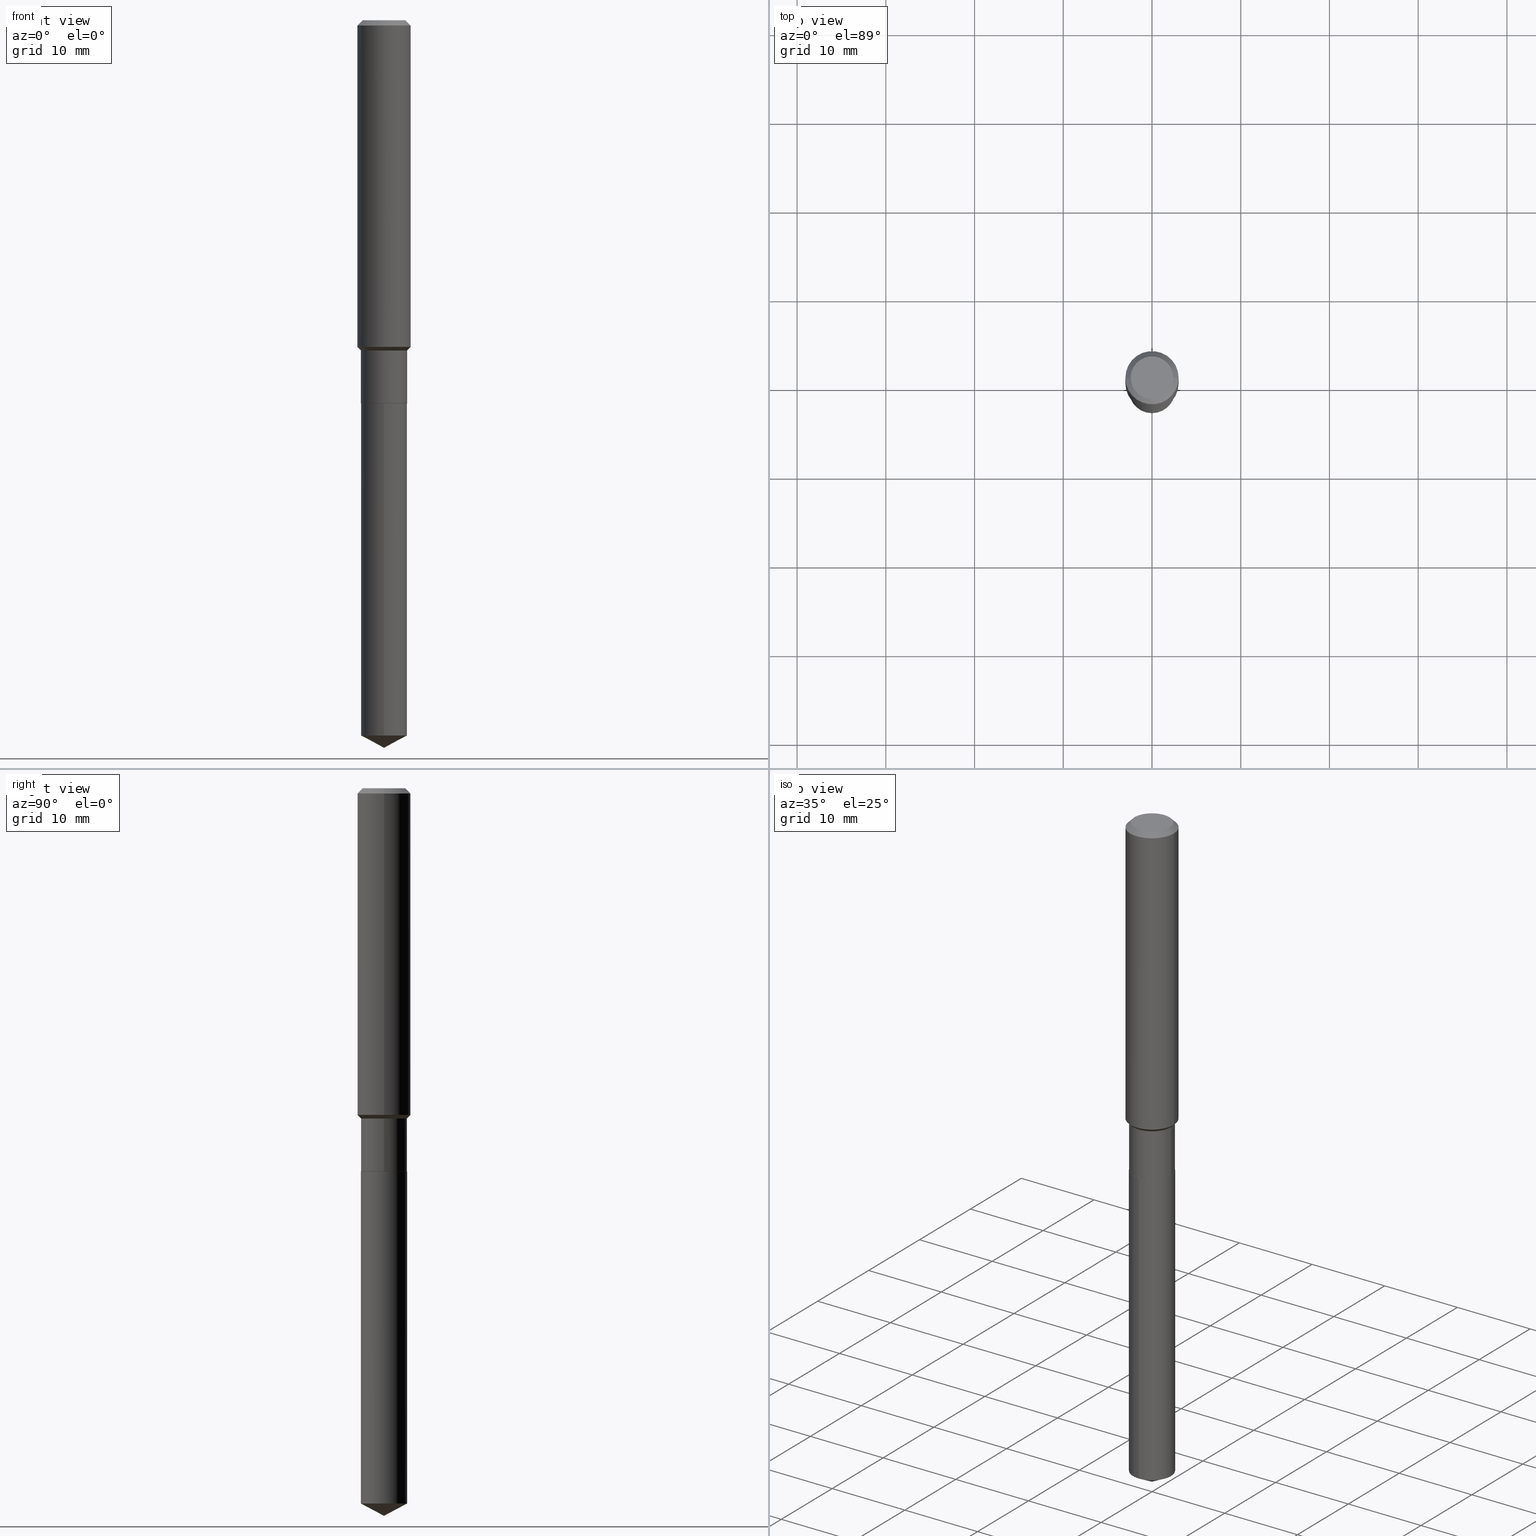
[diagram: canonical four-view strip — front | top / right | iso, engineering-drawing reading convention]
A machine part, canonical four-view strip (front | top / right | iso — engineering-drawing reading convention). The complete STEP part file that produces these views, byte-faithful:
ISO-10303-21;
HEADER;
FILE_DESCRIPTION (( 'STEP AP203' ),
    '1' );
FILE_NAME ('65022.STEP',
    '2024-04-24T19:53:44',
    ( '' ),
    ( '' ),
    'SwSTEP 2.0',
    'SolidWorks 2023',
    '' );
FILE_SCHEMA (( 'CONFIG_CONTROL_DESIGN' ));
ENDSEC;

DATA;
#1 = DIRECTION ( 'NONE',  ( 6.273719981627756610E-15, 0.8829475928589286537, 0.4694715627858877527 ) ) ;
#2 = VERTEX_POINT ( 'NONE', #459 ) ;
#3 = PLANE ( 'NONE',  #233 ) ;
#4 = AXIS2_PLACEMENT_3D ( 'NONE', #121, #415, #123 ) ;
#5 = CARTESIAN_POINT ( 'NONE',  ( 3.544829308005664880E-29, -5.061076774720080972E-15, -1.449549999999999894 ) ) ;
#6 = DIRECTION ( 'NONE',  ( -2.445468806185136877E-29, 3.491481338843145188E-15, 1.000000000000000000 ) ) ;
#7 = EDGE_CURVE ( 'NONE', #237, #210, #212, .T. ) ;
#8 = DIRECTION ( 'NONE',  ( -2.445509294301863442E-29, 3.491423357555552008E-15, 1.000000000000000000 ) ) ;
#9 = AXIS2_PLACEMENT_3D ( 'NONE', #35, #191, #122 ) ;
#10 = EDGE_CURVE ( 'NONE', #382, #62, #107, .T. ) ;
#11 = MECHANICAL_CONTEXT ( 'NONE', #458, 'mechanical' ) ;
#12 = EDGE_CURVE ( 'NONE', #112, #2, #180, .T. ) ;
#13 = APPROVAL_STATUS ( 'not_yet_approved' ) ;
#14 = ORIENTED_EDGE ( 'NONE', *, *, #296, .F. ) ;
#15 = DIRECTION ( 'NONE',  ( 1.000000000000000000, -6.982962677686266711E-15, 4.876176775795936353E-29 ) ) ;
#16 = DIRECTION ( 'NONE',  ( 1.000000000000000000, -6.982962677686262766E-15, 0.000000000000000000 ) ) ;
#17 = EDGE_LOOP ( 'NONE', ( #94, #456, #304, #286 ) ) ;
#18 = AXIS2_PLACEMENT_3D ( 'NONE', #381, #186, #153 ) ;
#19 = SECURITY_CLASSIFICATION_LEVEL ( 'unclassified' ) ;
#20 = VERTEX_POINT ( 'NONE', #314 ) ;
#21 = DIRECTION ( 'NONE',  ( -1.000000000000000000, 6.982962677686266711E-15, 0.000000000000000000 ) ) ;
#22 = APPROVAL_STATUS ( 'not_yet_approved' ) ;
#23 = DIRECTION ( 'NONE',  ( -2.445468806185136597E-29, 3.491481338843145583E-15, 1.000000000000000000 ) ) ;
#24 = CARTESIAN_POINT ( 'NONE',  ( 5.776197320209327532E-31, -8.246878922347559293E-17, -0.02362000000000014088 ) ) ;
#25 = AXIS2_PLACEMENT_3D ( 'NONE', #160, #285, #323 ) ;
#26 = VECTOR ( 'NONE', #137, 39.37007874015748143 ) ;
#27 = ORIENTED_EDGE ( 'NONE', *, *, #296, .T. ) ;
#28 = CC_DESIGN_DATE_AND_TIME_ASSIGNMENT ( #306, #114, ( #68 ) ) ;
#29 = ORIENTED_EDGE ( 'NONE', *, *, #44, .T. ) ;
#30 = DIRECTION ( 'NONE',  ( 1.000000000000000000, -6.982962677686266711E-15, 4.876176775795936353E-29 ) ) ;
#31 = DIRECTION ( 'NONE',  ( -2.445468806185136597E-29, 3.491481338843145583E-15, 1.000000000000000000 ) ) ;
#32 = VECTOR ( 'NONE', #6, 39.37007874015748143 ) ;
#33 = CIRCLE ( 'NONE', #448, 0.1181000000000001632 ) ;
#34 = FACE_OUTER_BOUND ( 'NONE', #84, .T. ) ;
#35 = CARTESIAN_POINT ( 'NONE',  ( 4.157786064275969447E-29, -5.936216572301116605E-15, -1.700200000000000156 ) ) ;
#36 = EDGE_CURVE ( 'NONE', #62, #382, #347, .T. ) ;
#37 = CARTESIAN_POINT ( 'NONE',  ( 4.159008798679061688E-29, -5.937962312970537319E-15, -1.700699999999999878 ) ) ;
#38 = DIRECTION ( 'NONE',  ( -0.7071067811865459074, 2.468850131082240100E-15, -0.7071067811865491270 ) ) ;
#39 = ORIENTED_EDGE ( 'NONE', *, *, #402, .F. ) ;
#40 = FACE_OUTER_BOUND ( 'NONE', #104, .T. ) ;
#41 = EDGE_LOOP ( 'NONE', ( #432, #351, #135, #131 ) ) ;
#42 = CIRCLE ( 'NONE', #371, 0.1181000000000001632 ) ;
#43 = FACE_OUTER_BOUND ( 'NONE', #422, .T. ) ;
#44 = EDGE_CURVE ( 'NONE', #438, #118, #59, .T. ) ;
#45 = DIRECTION ( 'NONE',  ( -2.445468806185136597E-29, 3.491481338843145583E-15, 1.000000000000000000 ) ) ;
#46 = DIRECTION ( 'NONE',  ( -2.445468806185136597E-29, 3.491481338843145583E-15, 1.000000000000000000 ) ) ;
#47 = DIRECTION ( 'NONE',  ( -6.982962677686265922E-15, -1.000000000000000000, 2.669123589315352370E-15 ) ) ;
#48 = DIRECTION ( 'NONE',  ( -2.445509294301863442E-29, 3.491423357555552008E-15, 1.000000000000000000 ) ) ;
#49 = ADVANCED_FACE ( 'NONE', ( #341 ), #477, .T. ) ;
#50 = VECTOR ( 'NONE', #70, 39.37007874015748143 ) ;
#51 = CONICAL_SURFACE ( 'NONE', #417, 74.04434902938312746, 1.082104136236484271 ) ;
#52 = ORIENTED_EDGE ( 'NONE', *, *, #224, .T. ) ;
#53 = VECTOR ( 'NONE', #380, 39.37007874015748143 ) ;
#54 = ADVANCED_FACE ( 'NONE', ( #436 ), #105, .T. ) ;
#55 = DIRECTION ( 'NONE',  ( -2.445468806185136597E-29, 3.491481338843145583E-15, 1.000000000000000000 ) ) ;
#56 = DIRECTION ( 'NONE',  ( -2.445468806185136597E-29, 3.491481338843145583E-15, 1.000000000000000000 ) ) ;
#57 = ORIENTED_EDGE ( 'NONE', *, *, #111, .T. ) ;
#58 = PERSON_AND_ORGANIZATION ( #376, #302 ) ;
#59 = CIRCLE ( 'NONE', #400, 0.1023499999999999688 ) ;
#60 = PRODUCT_DEFINITION_FORMATION_WITH_SPECIFIED_SOURCE ( 'ANY', '', #358, .NOT_KNOWN. ) ;
#61 = VERTEX_POINT ( 'NONE', #379 ) ;
#62 = VERTEX_POINT ( 'NONE', #322 ) ;
#63 = PERSON_AND_ORGANIZATION_ROLE ( 'design_supplier' ) ;
#64 = ORIENTED_EDGE ( 'NONE', *, *, #390, .F. ) ;
#65 = PERSON_AND_ORGANIZATION ( #376, #302 ) ;
#66 = AXIS2_PLACEMENT_3D ( 'NONE', #450, #165, #273 ) ;
#67 = ADVANCED_FACE ( 'NONE', ( #127 ), #188, .T. ) ;
#68 = SECURITY_CLASSIFICATION ( '', '', #19 ) ;
#69 = APPROVAL_DATE_TIME ( #303, #194 ) ;
#70 = DIRECTION ( 'NONE',  ( -0.7071067811866199593, 7.493145998870616062E-15, 0.7071067811864750752 ) ) ;
#71 = DIRECTION ( 'NONE',  ( -6.982962677686267499E-15, -1.000000000000000000, 3.541896320645580590E-15 ) ) ;
#72 = DIRECTION ( 'NONE',  ( -2.445509294301863442E-29, 3.491423357555552008E-15, 1.000000000000000000 ) ) ;
#73 = EDGE_CURVE ( 'NONE', #161, #62, #453, .T. ) ;
#74 = CARTESIAN_POINT ( 'NONE',  ( 4.716267017698007905E-46, -6.733579360998555036E-32, -1.928573779297252010E-17 ) ) ;
#75 = LINE ( 'NONE', #317, #469 ) ;
#76 = ORIENTED_EDGE ( 'NONE', *, *, #12, .F. ) ;
#77 = CARTESIAN_POINT ( 'NONE',  ( 5.776197320209327532E-31, -8.246878922347559293E-17, -0.02362000000000014088 ) ) ;
#78 = AXIS2_PLACEMENT_3D ( 'NONE', #311, #23, #245 ) ;
#79 = LOCAL_TIME ( 15, 53, 44.00000000000000000, #265 ) ;
#80 = DIRECTION ( 'NONE',  ( 2.445509294301863162E-29, -3.491423357555552008E-15, -1.000000000000000000 ) ) ;
#81 = DIRECTION ( 'NONE',  ( -6.982962677686265922E-15, -1.000000000000000000, 5.338247178630704739E-15 ) ) ;
#82 = CARTESIAN_POINT ( 'NONE',  ( -0.1023499999999999688, -4.388827115756398975E-15, -1.465300000000000047 ) ) ;
#83 = DIRECTION ( 'NONE',  ( -2.445509294301863442E-29, 3.491423357555552008E-15, 1.000000000000000000 ) ) ;
#84 = EDGE_LOOP ( 'NONE', ( #64, #373, #162 ) ) ;
#85 = DIRECTION ( 'NONE',  ( -6.165590087286825774E-15, -0.8829475928589252121, 0.4694715627858939699 ) ) ;
#86 = LINE ( 'NONE', #488, #154 ) ;
#87 = CARTESIAN_POINT ( 'NONE',  ( 4.159008798679061688E-29, -5.937962312970537319E-15, -1.700699999999999878 ) ) ;
#88 = DIRECTION ( 'NONE',  ( 1.000000000000000000, -6.982962677686266711E-15, 0.000000000000000000 ) ) ;
#89 = EDGE_CURVE ( 'NONE', #216, #61, #440, .T. ) ;
#90 = AXIS2_PLACEMENT_3D ( 'NONE', #87, #388, #47 ) ;
#91 = DIRECTION ( 'NONE',  ( -6.982962677686265922E-15, -1.000000000000000000, 2.669123589315352370E-15 ) ) ;
#92 = DIRECTION ( 'NONE',  ( 1.000000000000000000, -6.982962677686266711E-15, 4.876176775795936353E-29 ) ) ;
#93 = ADVANCED_FACE ( 'NONE', ( #239 ), #327, .T. ) ;
#94 = ORIENTED_EDGE ( 'NONE', *, *, #402, .T. ) ;
#95 = ADVANCED_BREP_SHAPE_REPRESENTATION ( '65022', ( #150, #152, #372 ), #130 ) ;
#96 = DIRECTION ( 'NONE',  ( 1.000000000000000000, -6.982962677686265922E-15, 4.876176775795935793E-29 ) ) ;
#97 = EDGE_LOOP ( 'NONE', ( #144, #393, #439, #295 ) ) ;
#98 = DIRECTION ( 'NONE',  ( -2.438088387897960049E-29, 3.491481338843145188E-15, 1.000000000000000000 ) ) ;
#99 = AXIS2_PLACEMENT_3D ( 'NONE', #77, #423, #88 ) ;
#100 = AXIS2_PLACEMENT_3D ( 'NONE', #201, #434, #139 ) ;
#101 = DIRECTION ( 'NONE',  ( 1.000000000000000000, -6.982962677686263555E-15, 0.000000000000000000 ) ) ;
#102 = ORIENTED_EDGE ( 'NONE', *, *, #490, .F. ) ;
#103 =( NAMED_UNIT ( * ) PLANE_ANGLE_UNIT ( ) SI_UNIT ( $, .RADIAN. ) );
#104 = EDGE_LOOP ( 'NONE', ( #299, #479, #227, #260 ) ) ;
#105 = CYLINDRICAL_SURFACE ( 'NONE', #353, 0.1023499999999999827 ) ;
#106 = APPROVAL_ROLE ( '' ) ;
#107 = CIRCLE ( 'NONE', #385, 0.1180999999999999966 ) ;
#108 = VECTOR ( 'NONE', #174, 39.37007874015748143 ) ;
#109 = SHAPE_DEFINITION_REPRESENTATION ( #466, #95 ) ;
#110 = CARTESIAN_POINT ( 'NONE',  ( -7.147062300611476852E-16, -0.1023500000000059501, -1.700699999999999656 ) ) ;
#111 = EDGE_CURVE ( 'NONE', #112, #168, #308, .T. ) ;
#112 = VERTEX_POINT ( 'NONE', #166 ) ;
#113 = EDGE_CURVE ( 'NONE', #438, #462, #86, .T. ) ;
#114 = DATE_TIME_ROLE ( 'classification_date' ) ;
#115 = VERTEX_POINT ( 'NONE', #196 ) ;
#116 = CONICAL_SURFACE ( 'NONE', #279, 0.1018499999999999961, 0.7853981633975507526 ) ;
#117 = APPROVAL_DATE_TIME ( #149, #276 ) ;
#118 = VERTEX_POINT ( 'NONE', #274 ) ;
#119 = CYLINDRICAL_SURFACE ( 'NONE', #333, 0.1023499999999999965 ) ;
#120 = ORIENTED_EDGE ( 'NONE', *, *, #171, .T. ) ;
#121 = CARTESIAN_POINT ( 'NONE',  ( 4.157786064275969447E-29, -5.936216572301116605E-15, -1.700200000000000156 ) ) ;
#122 = DIRECTION ( 'NONE',  ( 1.000000000000000000, -6.982962677686270655E-15, 0.000000000000000000 ) ) ;
#123 = DIRECTION ( 'NONE',  ( 1.000000000000000000, -6.982962677686270655E-15, 0.000000000000000000 ) ) ;
#124 = CARTESIAN_POINT ( 'NONE',  ( 7.761683055116036547E-29, -1.108145576764538429E-14, -3.173879539669447691 ) ) ;
#125 = DIRECTION ( 'NONE',  ( -2.445468806185136597E-29, 3.491481338843145583E-15, 1.000000000000000000 ) ) ;
#126 = CARTESIAN_POINT ( 'NONE',  ( 0.000000000000000000, 0.000000000000000000, 0.000000000000000000 ) ) ;
#127 = FACE_OUTER_BOUND ( 'NONE', #200, .T. ) ;
#128 = EDGE_CURVE ( 'NONE', #2, #115, #75, .T. ) ;
#129 = DIRECTION ( 'NONE',  ( -2.445468806185136597E-29, 3.491481338843145583E-15, 1.000000000000000000 ) ) ;
#130 =( GEOMETRIC_REPRESENTATION_CONTEXT ( 3 ) GLOBAL_UNCERTAINTY_ASSIGNED_CONTEXT ( ( #478 ) ) GLOBAL_UNIT_ASSIGNED_CONTEXT ( ( #170, #103, #292 ) ) REPRESENTATION_CONTEXT ( 'NONE', 'WORKASPACE' ) );
#131 = ORIENTED_EDGE ( 'NONE', *, *, #159, .F. ) ;
#132 = CARTESIAN_POINT ( 'NONE',  ( -0.09447999999999998066, 7.009847083995354710E-16, -1.928573779297727792E-17 ) ) ;
#133 = ADVANCED_FACE ( 'NONE', ( #357 ), #461, .T. ) ;
#134 = CARTESIAN_POINT ( 'NONE',  ( 3.583345441703080840E-29, -5.116067605806861096E-15, -1.465300000000000047 ) ) ;
#135 = ORIENTED_EDGE ( 'NONE', *, *, #10, .F. ) ;
#136 = DIRECTION ( 'NONE',  ( -6.982962677686265922E-15, -1.000000000000000000, 5.338247178630704739E-15 ) ) ;
#137 = DIRECTION ( 'NONE',  ( -2.445509294301863442E-29, 3.491423357555552008E-15, 1.000000000000000000 ) ) ;
#138 = APPROVAL_PERSON_ORGANIZATION ( #305, #435, #106 ) ;
#139 = DIRECTION ( 'NONE',  ( -6.982962677686265922E-15, -1.000000000000000000, 2.669123589315352370E-15 ) ) ;
#140 = ORIENTED_EDGE ( 'NONE', *, *, #128, .F. ) ;
#141 = CC_DESIGN_PERSON_AND_ORGANIZATION_ASSIGNMENT ( #179, #63, ( #60 ) ) ;
#142 = DIRECTION ( 'NONE',  ( -2.445468806185136597E-29, 3.491481338843145583E-15, 1.000000000000000000 ) ) ;
#143 = CALENDAR_DATE ( 2024, 24, 4 ) ;
#144 = ORIENTED_EDGE ( 'NONE', *, *, #474, .T. ) ;
#145 = AXIS2_PLACEMENT_3D ( 'NONE', #37, #80, #460 ) ;
#146 = EDGE_CURVE ( 'NONE', #2, #112, #425, .T. ) ;
#147 = CALENDAR_DATE ( 2024, 24, 4 ) ;
#148 = ORIENTED_EDGE ( 'NONE', *, *, #310, .T. ) ;
#149 = DATE_AND_TIME ( #403, #386 ) ;
#150 = MANIFOLD_SOLID_BREP ( 'Body-Move/Copy2[1]', #215 ) ;
#151 = ORIENTED_EDGE ( 'NONE', *, *, #442, .T. ) ;
#152 = MANIFOLD_SOLID_BREP ( 'Body-Move/Copy2[2]', #394 ) ;
#153 = DIRECTION ( 'NONE',  ( 1.000000000000000000, -6.982962677686262766E-15, 0.000000000000000000 ) ) ;
#154 = VECTOR ( 'NONE', #349, 39.37007874015748143 ) ;
#155 = CC_DESIGN_APPROVAL ( #194, ( #217 ) ) ;
#156 = PLANE ( 'NONE',  #25 ) ;
#157 = EDGE_LOOP ( 'NONE', ( #269, #76 ) ) ;
#158 = FACE_OUTER_BOUND ( 'NONE', #319, .T. ) ;
#159 = EDGE_CURVE ( 'NONE', #462, #382, #413, .T. ) ;
#160 = CARTESIAN_POINT ( 'NONE',  ( 2.358133508849003952E-46, -3.366789680499277518E-32, -9.642868896486260050E-18 ) ) ;
#161 = VERTEX_POINT ( 'NONE', #324 ) ;
#162 = ORIENTED_EDGE ( 'NONE', *, *, #474, .F. ) ;
#163 = AXIS2_PLACEMENT_3D ( 'NONE', #486, #246, #383 ) ;
#164 = CC_DESIGN_PERSON_AND_ORGANIZATION_ASSIGNMENT ( #473, #225, ( #68 ) ) ;
#165 = DIRECTION ( 'NONE',  ( 2.445468806185136597E-29, -3.491481338843145583E-15, -1.000000000000000000 ) ) ;
#166 = CARTESIAN_POINT ( 'NONE',  ( -0.1018499999999999961, -5.211625309424764107E-15, -1.700699999999999878 ) ) ;
#167 = DIRECTION ( 'NONE',  ( -2.445468806185136597E-29, 3.491481338843145583E-15, 1.000000000000000000 ) ) ;
#168 = VERTEX_POINT ( 'NONE', #375 ) ;
#169 = ORIENTED_EDGE ( 'NONE', *, *, #73, .F. ) ;
#170 =( CONVERSION_BASED_UNIT ( 'INCH', #207 ) LENGTH_UNIT ( ) NAMED_UNIT ( #266 ) );
#171 = EDGE_CURVE ( 'NONE', #168, #115, #253, .T. ) ;
#172 = AXIS2_PLACEMENT_3D ( 'NONE', #218, #241, #414 ) ;
#173 = CARTESIAN_POINT ( 'NONE',  ( 0.000000000000000000, 0.000000000000000000, 0.000000000000000000 ) ) ;
#174 = DIRECTION ( 'NONE',  ( 0.7071067811865459074, -7.319954787623249734E-15, -0.7071067811865491270 ) ) ;
#175 = EDGE_CURVE ( 'NONE', #229, #62, #235, .T. ) ;
#176 = CARTESIAN_POINT ( 'NONE',  ( -0.1023499999999999827, 7.272404900504624170E-16, -5.034530064875895945E-30 ) ) ;
#177 = ORIENTED_EDGE ( 'NONE', *, *, #36, .F. ) ;
#178 = PRODUCT_RELATED_PRODUCT_CATEGORY ( 'detail', '', ( #358 ) ) ;
#179 = PERSON_AND_ORGANIZATION ( #376, #302 ) ;
#180 = CIRCLE ( 'NONE', #172, 0.1018499999999999961 ) ;
#181 = AXIS2_PLACEMENT_3D ( 'NONE', #134, #359, #16 ) ;
#182 = ORIENTED_EDGE ( 'NONE', *, *, #405, .F. ) ;
#183 = APPROVAL_STATUS ( 'not_yet_approved' ) ;
#184 = ADVANCED_FACE ( 'NONE', ( #193 ), #484, .T. ) ;
#185 = EDGE_LOOP ( 'NONE', ( #240, #57, #39, #140 ) ) ;
#186 = DIRECTION ( 'NONE',  ( -2.445468806185136597E-29, 3.491481338843145583E-15, 1.000000000000000000 ) ) ;
#187 = ORIENTED_EDGE ( 'NONE', *, *, #89, .T. ) ;
#188 = CONICAL_SURFACE ( 'NONE', #204, 74.04434902938312746, 1.082104136236484271 ) ;
#189 = CC_DESIGN_APPROVAL ( #435, ( #68 ) ) ;
#190 = LINE ( 'NONE', #348, #441 ) ;
#191 = DIRECTION ( 'NONE',  ( -2.445468806185136597E-29, 3.491481338843145583E-15, 1.000000000000000000 ) ) ;
#192 = DIRECTION ( 'NONE',  ( -2.445509294301863442E-29, 3.491423357555552008E-15, 1.000000000000000000 ) ) ;
#193 = FACE_OUTER_BOUND ( 'NONE', #307, .T. ) ;
#194 = APPROVAL ( #13, 'UNSPECIFIED' ) ;
#195 = CARTESIAN_POINT ( 'NONE',  ( 7.894837654794706894E-29, -1.127136202519658949E-14, -3.228299999999999947 ) ) ;
#196 = CARTESIAN_POINT ( 'NONE',  ( 0.1023499999999999965, -6.650922802362306198E-15, -1.700200000000000156 ) ) ;
#197 = AXIS2_PLACEMENT_3D ( 'NONE', #124, #72, #81 ) ;
#198 = LOCAL_TIME ( 15, 53, 44.00000000000000000, #447 ) ;
#199 = CARTESIAN_POINT ( 'NONE',  ( 0.1180999999999999966, -9.071566814582237199E-16, -0.02362000000000014088 ) ) ;
#200 = EDGE_LOOP ( 'NONE', ( #343, #293, #221 ) ) ;
#201 = CARTESIAN_POINT ( 'NONE',  ( 4.159008798679061688E-29, -5.937962312970537319E-15, -1.700699999999999878 ) ) ;
#202 = CARTESIAN_POINT ( 'NONE',  ( 4.159008798679061688E-29, -5.937962312970537319E-15, -1.700699999999999878 ) ) ;
#203 = DIRECTION ( 'NONE',  ( -2.445468806185136597E-29, 3.491481338843145583E-15, 1.000000000000000000 ) ) ;
#204 = AXIS2_PLACEMENT_3D ( 'NONE', #275, #83, #71 ) ;
#205 = FACE_OUTER_BOUND ( 'NONE', #214, .T. ) ;
#206 = CIRCLE ( 'NONE', #264, 0.1023499999999999965 ) ;
#207 = LENGTH_MEASURE_WITH_UNIT ( LENGTH_MEASURE( 0.02539999999999999897 ), #396 );
#208 = EDGE_CURVE ( 'NONE', #168, #118, #408, .T. ) ;
#209 = CARTESIAN_POINT ( 'NONE',  ( 0.1181000000000001632, -5.885764666954829235E-15, -1.449549999999999894 ) ) ;
#210 = VERTEX_POINT ( 'NONE', #220 ) ;
#211 = APPROVAL_ROLE ( '' ) ;
#212 = CIRCLE ( 'NONE', #90, 0.1023499999999999965 ) ;
#213 = APPROVAL_PERSON_ORGANIZATION ( #298, #276, #406 ) ;
#214 = EDGE_LOOP ( 'NONE', ( #182, #52, #444, #337 ) ) ;
#215 = CLOSED_SHELL ( 'NONE', ( #454, #370, #67, #338, #355 ) ) ;
#216 = VERTEX_POINT ( 'NONE', #411 ) ;
#217 = PRODUCT_DEFINITION ( 'UNKNOWN', '', #60, #446 ) ;
#218 = CARTESIAN_POINT ( 'NONE',  ( 4.159008798679061688E-29, -5.937962312970537319E-15, -1.700699999999999878 ) ) ;
#219 = COORDINATED_UNIVERSAL_TIME_OFFSET ( 5, 0, .BEHIND. ) ;
#220 = CARTESIAN_POINT ( 'NONE',  ( 7.272404900505402184E-16, 0.1023499999999940568, -1.700700000000000323 ) ) ;
#221 = ORIENTED_EDGE ( 'NONE', *, *, #89, .F. ) ;
#222 = CC_DESIGN_APPROVAL ( #276, ( #60 ) ) ;
#223 = ORIENTED_EDGE ( 'NONE', *, *, #405, .T. ) ;
#224 = EDGE_CURVE ( 'NONE', #118, #438, #301, .T. ) ;
#225 = PERSON_AND_ORGANIZATION_ROLE ( 'classification_officer' ) ;
#226 = DIRECTION ( 'NONE',  ( -2.445468806185136877E-29, 3.491481338843145188E-15, 1.000000000000000000 ) ) ;
#227 = ORIENTED_EDGE ( 'NONE', *, *, #128, .T. ) ;
#228 = CC_DESIGN_PERSON_AND_ORGANIZATION_ASSIGNMENT ( #430, #389, ( #358 ) ) ;
#229 = VERTEX_POINT ( 'NONE', #132 ) ;
#230 = CARTESIAN_POINT ( 'NONE',  ( -7.147062300611476852E-16, -0.1023500000000059501, -1.700699999999999656 ) ) ;
#231 = CARTESIAN_POINT ( 'NONE',  ( 5.776197320209327532E-31, -8.246878922347559293E-17, -0.02362000000000014088 ) ) ;
#232 = AXIS2_PLACEMENT_3D ( 'NONE', #126, #284, #92 ) ;
#233 = AXIS2_PLACEMENT_3D ( 'NONE', #321, #98, #96 ) ;
#234 = LINE ( 'NONE', #356, #364 ) ;
#235 = LINE ( 'NONE', #378, #244 ) ;
#236 = CC_DESIGN_DATE_AND_TIME_ASSIGNMENT ( #344, #443, ( #217 ) ) ;
#237 = VERTEX_POINT ( 'NONE', #110 ) ;
#238 = LINE ( 'NONE', #487, #320 ) ;
#239 = FACE_OUTER_BOUND ( 'NONE', #429, .T. ) ;
#240 = ORIENTED_EDGE ( 'NONE', *, *, #146, .T. ) ;
#241 = DIRECTION ( 'NONE',  ( -2.445468806185136597E-29, 3.491481338843145583E-15, 1.000000000000000000 ) ) ;
#242 = CYLINDRICAL_SURFACE ( 'NONE', #280, 0.1181000000000000799 ) ;
#243 = DIRECTION ( 'NONE',  ( 0.7071067811866199593, -2.468850131083015945E-15, 0.7071067811864750752 ) ) ;
#244 = VECTOR ( 'NONE', #38, 39.37007874015748143 ) ;
#245 = DIRECTION ( 'NONE',  ( 1.000000000000000000, -6.982962677686262766E-15, 0.000000000000000000 ) ) ;
#246 = DIRECTION ( 'NONE',  ( -2.445468806185136597E-29, 3.491481338843145583E-15, 1.000000000000000000 ) ) ;
#247 = ORIENTED_EDGE ( 'NONE', *, *, #397, .T. ) ;
#248 = FACE_OUTER_BOUND ( 'NONE', #185, .T. ) ;
#249 = ORIENTED_EDGE ( 'NONE', *, *, #342, .F. ) ;
#250 = DIRECTION ( 'NONE',  ( -2.445468806185136597E-29, 3.491481338843145583E-15, 1.000000000000000000 ) ) ;
#251 = ORIENTED_EDGE ( 'NONE', *, *, #10, .T. ) ;
#252 = EDGE_CURVE ( 'NONE', #407, #216, #234, .T. ) ;
#253 = CIRCLE ( 'NONE', #9, 0.1023499999999999965 ) ;
#254 = APPROVAL_PERSON_ORGANIZATION ( #365, #194, #211 ) ;
#255 = CARTESIAN_POINT ( 'NONE',  ( 3.544829308005664880E-29, -5.061076774720080972E-15, -1.449549999999999894 ) ) ;
#256 = CC_DESIGN_PERSON_AND_ORGANIZATION_ASSIGNMENT ( #65, #437, ( #60 ) ) ;
#257 = CARTESIAN_POINT ( 'NONE',  ( 4.159008798679061688E-29, -5.937962312970537319E-15, -1.700699999999999878 ) ) ;
#258 = EDGE_LOOP ( 'NONE', ( #289, #187, #367, #362 ) ) ;
#259 = CARTESIAN_POINT ( 'NONE',  ( 0.1023499999999999688, -5.830773835868049900E-15, -1.465300000000000047 ) ) ;
#260 = ORIENTED_EDGE ( 'NONE', *, *, #171, .F. ) ;
#261 = CARTESIAN_POINT ( 'NONE',  ( 0.000000000000000000, 0.000000000000000000, 0.000000000000000000 ) ) ;
#262 = CC_DESIGN_PERSON_AND_ORGANIZATION_ASSIGNMENT ( #58, #368, ( #217 ) ) ;
#263 = AXIS2_PLACEMENT_3D ( 'NONE', #202, #46, #421 ) ;
#264 = AXIS2_PLACEMENT_3D ( 'NONE', #326, #48, #398 ) ;
#265 = COORDINATED_UNIVERSAL_TIME_OFFSET ( 5, 0, .BEHIND. ) ;
#266 = DIMENSIONAL_EXPONENTS ( 1.000000000000000000, 0.000000000000000000, 0.000000000000000000, 0.000000000000000000, 0.000000000000000000, 0.000000000000000000, 0.000000000000000000 ) ;
#267 = APPROVAL_DATE_TIME ( #271, #435 ) ;
#268 = VECTOR ( 'NONE', #226, 39.37007874015748143 ) ;
#269 = ORIENTED_EDGE ( 'NONE', *, *, #146, .F. ) ;
#270 = EDGE_CURVE ( 'NONE', #61, #237, #418, .T. ) ;
#271 = DATE_AND_TIME ( #147, #198 ) ;
#272 = ADVANCED_FACE ( 'NONE', ( #350 ), #416, .T. ) ;
#273 = DIRECTION ( 'NONE',  ( -1.000000000000000000, 6.982962677686266711E-15, 0.000000000000000000 ) ) ;
#274 = CARTESIAN_POINT ( 'NONE',  ( -0.1023499999999999688, -4.798901599003526335E-15, -1.465300000000000047 ) ) ;
#275 = CARTESIAN_POINT ( 'NONE',  ( -8.838512467979673867E-28, 1.261861518682146911E-13, 36.14177874015747705 ) ) ;
#276 = APPROVAL ( #183, 'UNSPECIFIED' ) ;
#277 = DIRECTION ( 'NONE',  ( -2.445468806185136877E-29, 3.491481338843145188E-15, 1.000000000000000000 ) ) ;
#278 = VECTOR ( 'NONE', #192, 39.37007874015748143 ) ;
#279 = AXIS2_PLACEMENT_3D ( 'NONE', #257, #55, #366 ) ;
#280 = AXIS2_PLACEMENT_3D ( 'NONE', #452, #167, #457 ) ;
#281 = LINE ( 'NONE', #82, #53 ) ;
#282 = ORIENTED_EDGE ( 'NONE', *, *, #36, .T. ) ;
#283 = CARTESIAN_POINT ( 'NONE',  ( 4.159008798679061688E-29, -5.937962312970537319E-15, -1.700699999999999878 ) ) ;
#284 = DIRECTION ( 'NONE',  ( -2.445468806185136597E-29, 3.491481338843145583E-15, 1.000000000000000000 ) ) ;
#285 = DIRECTION ( 'NONE',  ( 2.438088387897960049E-29, -3.491481338843145188E-15, -1.000000000000000000 ) ) ;
#286 = ORIENTED_EDGE ( 'NONE', *, *, #397, .F. ) ;
#287 = AXIS2_PLACEMENT_3D ( 'NONE', #24, #431, #21 ) ;
#288 = LINE ( 'NONE', #472, #26 ) ;
#289 = ORIENTED_EDGE ( 'NONE', *, *, #419, .F. ) ;
#290 = APPLICATION_PROTOCOL_DEFINITION ( 'international standard', 'config_control_design', 1994, #458 ) ;
#291 = ADVANCED_FACE ( 'NONE', ( #158 ), #156, .F. ) ;
#292 =( NAMED_UNIT ( * ) SI_UNIT ( $, .STERADIAN. ) SOLID_ANGLE_UNIT ( ) );
#293 = ORIENTED_EDGE ( 'NONE', *, *, #390, .T. ) ;
#294 = LINE ( 'NONE', #392, #108 ) ;
#295 = ORIENTED_EDGE ( 'NONE', *, *, #270, .F. ) ;
#296 = EDGE_CURVE ( 'NONE', #229, #20, #339, .T. ) ;
#297 = CARTESIAN_POINT ( 'NONE',  ( 0.000000000000000000, 0.000000000000000000, 0.000000000000000000 ) ) ;
#298 = PERSON_AND_ORGANIZATION ( #376, #302 ) ;
#299 = ORIENTED_EDGE ( 'NONE', *, *, #111, .F. ) ;
#300 = CALENDAR_DATE ( 2024, 24, 4 ) ;
#301 = CIRCLE ( 'NONE', #78, 0.1023499999999999688 ) ;
#302 = ORGANIZATION ( 'UNSPECIFIED', 'UNSPECIFIED', '' ) ;
#303 = DATE_AND_TIME ( #300, #79 ) ;
#304 = ORIENTED_EDGE ( 'NONE', *, *, #44, .F. ) ;
#305 = PERSON_AND_ORGANIZATION ( #376, #302 ) ;
#306 = DATE_AND_TIME ( #369, #354 ) ;
#307 = EDGE_LOOP ( 'NONE', ( #249, #489, #251, #360 ) ) ;
#308 = LINE ( 'NONE', #315, #50 ) ;
#309 = PLANE ( 'NONE',  #145 ) ;
#310 = EDGE_CURVE ( 'NONE', #161, #462, #42, .T. ) ;
#311 = CARTESIAN_POINT ( 'NONE',  ( 3.583345441703080840E-29, -5.116067605806861096E-15, -1.465300000000000047 ) ) ;
#312 = FACE_OUTER_BOUND ( 'NONE', #41, .T. ) ;
#313 = ORIENTED_EDGE ( 'NONE', *, *, #175, .T. ) ;
#314 = CARTESIAN_POINT ( 'NONE',  ( 0.09447999999999998066, -7.704367267948738690E-16, -1.928573779296752193E-17 ) ) ;
#315 = CARTESIAN_POINT ( 'NONE',  ( -0.1018499999999999961, -5.214274536598875308E-15, -1.700699999999999878 ) ) ;
#316 = DIRECTION ( 'NONE',  ( 1.000000000000000000, -6.982962677686267499E-15, 4.875432709231658792E-29 ) ) ;
#317 = CARTESIAN_POINT ( 'NONE',  ( 0.1018499999999999961, -6.649177061692883906E-15, -1.700699999999999878 ) ) ;
#318 = AXIS2_PLACEMENT_3D ( 'NONE', #74, #129, #316 ) ;
#319 = EDGE_LOOP ( 'NONE', ( #27, #399 ) ) ;
#320 = VECTOR ( 'NONE', #277, 39.37007874015748143 ) ;
#321 = CARTESIAN_POINT ( 'NONE',  ( 4.159008798679061688E-29, -5.937962312970537319E-15, -1.700699999999999878 ) ) ;
#322 = CARTESIAN_POINT ( 'NONE',  ( -0.1180999999999999966, -1.732621811039098637E-15, -0.02362000000000014088 ) ) ;
#323 = DIRECTION ( 'NONE',  ( -1.000000000000000000, 6.982962677686265922E-15, -4.876176775795935793E-29 ) ) ;
#324 = CARTESIAN_POINT ( 'NONE',  ( -0.1181000000000001632, -4.221925803787401987E-15, -1.449549999999999894 ) ) ;
#325 = ADVANCED_FACE ( 'NONE', ( #312 ), #242, .T. ) ;
#326 = CARTESIAN_POINT ( 'NONE',  ( 4.159008798679061688E-29, -5.937962312970537319E-15, -1.700699999999999878 ) ) ;
#327 = CONICAL_SURFACE ( 'NONE', #18, 0.1023499999999999688, 0.7853981633974472798 ) ;
#328 = CIRCLE ( 'NONE', #163, 0.09447999999999998066 ) ;
#329 = DIRECTION ( 'NONE',  ( 1.000000000000000000, 0.000000000000000000, 0.000000000000000000 ) ) ;
#330 = APPLICATION_PROTOCOL_DEFINITION ( 'international standard', 'config_control_design', 1994, #464 ) ;
#331 = CARTESIAN_POINT ( 'NONE',  ( 7.761683055116036547E-29, -1.108145576764538429E-14, -3.173879539669447691 ) ) ;
#332 = VECTOR ( 'NONE', #483, 39.37007874015748143 ) ;
#333 = AXIS2_PLACEMENT_3D ( 'NONE', #283, #420, #91 ) ;
#334 = CARTESIAN_POINT ( 'NONE',  ( 3.583345441703080840E-29, -5.116067605806861096E-15, -1.465300000000000047 ) ) ;
#335 = ORIENTED_EDGE ( 'NONE', *, *, #159, .T. ) ;
#336 = COORDINATED_UNIVERSAL_TIME_OFFSET ( 5, 0, .BEHIND. ) ;
#337 = ORIENTED_EDGE ( 'NONE', *, *, #310, .F. ) ;
#338 = ADVANCED_FACE ( 'NONE', ( #374 ), #119, .T. ) ;
#339 = CIRCLE ( 'NONE', #318, 0.09447999999999998066 ) ;
#340 = CONICAL_SURFACE ( 'NONE', #485, 0.1018499999999999961, 0.7853981633975507526 ) ;
#341 = FACE_OUTER_BOUND ( 'NONE', #345, .T. ) ;
#342 = EDGE_CURVE ( 'NONE', #20, #229, #328, .T. ) ;
#343 = ORIENTED_EDGE ( 'NONE', *, *, #252, .F. ) ;
#344 = DATE_AND_TIME ( #143, #433 ) ;
#345 = EDGE_LOOP ( 'NONE', ( #169, #148, #335, #177 ) ) ;
#346 = DIRECTION ( 'NONE',  ( 1.000000000000000000, -6.982962677686265922E-15, 0.000000000000000000 ) ) ;
#347 = CIRCLE ( 'NONE', #99, 0.1180999999999999966 ) ;
#348 = CARTESIAN_POINT ( 'NONE',  ( 7.894699938514472350E-29, -1.127155924274821057E-14, -3.228299999999999947 ) ) ;
#349 = DIRECTION ( 'NONE',  ( 0.7071067811865467956, -2.468850131082249172E-15, 0.7071067811865482389 ) ) ;
#350 = FACE_OUTER_BOUND ( 'NONE', #481, .T. ) ;
#351 = ORIENTED_EDGE ( 'NONE', *, *, #73, .T. ) ;
#352 = FACE_OUTER_BOUND ( 'NONE', #157, .T. ) ;
#353 = AXIS2_PLACEMENT_3D ( 'NONE', #261, #31, #30 ) ;
#354 = LOCAL_TIME ( 15, 53, 44.00000000000000000, #219 ) ;
#355 = ADVANCED_FACE ( 'NONE', ( #43 ), #309, .F. ) ;
#356 = CARTESIAN_POINT ( 'NONE',  ( 7.894838862403923996E-29, -1.127136202519658949E-14, -3.228299999999999947 ) ) ;
#357 = FACE_OUTER_BOUND ( 'NONE', #476, .T. ) ;
#358 = PRODUCT ( '65022', '65022', '', ( #11 ) ) ;
#359 = DIRECTION ( 'NONE',  ( -2.445468806185136597E-29, 3.491481338843145583E-15, 1.000000000000000000 ) ) ;
#360 = ORIENTED_EDGE ( 'NONE', *, *, #175, .F. ) ;
#361 = DIRECTION ( 'NONE',  ( 1.000000000000000000, -6.982962677686266711E-15, 0.000000000000000000 ) ) ;
#362 = ORIENTED_EDGE ( 'NONE', *, *, #442, .F. ) ;
#363 = ADVANCED_FACE ( 'NONE', ( #40 ), #340, .T. ) ;
#364 = VECTOR ( 'NONE', #1, 39.37007874015748143 ) ;
#365 = PERSON_AND_ORGANIZATION ( #376, #302 ) ;
#366 = DIRECTION ( 'NONE',  ( 1.000000000000000000, -6.982962677686265922E-15, 0.000000000000000000 ) ) ;
#367 = ORIENTED_EDGE ( 'NONE', *, *, #270, .T. ) ;
#368 = PERSON_AND_ORGANIZATION_ROLE ( 'creator' ) ;
#369 = CALENDAR_DATE ( 2024, 24, 4 ) ;
#370 = ADVANCED_FACE ( 'NONE', ( #34 ), #51, .T. ) ;
#371 = AXIS2_PLACEMENT_3D ( 'NONE', #5, #125, #424 ) ;
#372 = AXIS2_PLACEMENT_3D ( 'NONE', #173, #467, #329 ) ;
#373 = ORIENTED_EDGE ( 'NONE', *, *, #252, .T. ) ;
#374 = FACE_OUTER_BOUND ( 'NONE', #258, .T. ) ;
#375 = CARTESIAN_POINT ( 'NONE',  ( -0.1023499999999999965, -4.798901599003526335E-15, -1.700200000000000156 ) ) ;
#376 = PERSON ( 'UNSPECIFIED', 'UNSPECIFIED', 'UNSPECIFIED', ('UNSPECIFIED'), ('UNSPECIFIED'), ('UNSPECIFIED') ) ;
#377 = DIRECTION ( 'NONE',  ( -2.445509294301863442E-29, 3.491423357555552008E-15, 1.000000000000000000 ) ) ;
#378 = CARTESIAN_POINT ( 'NONE',  ( -0.1180999999999999966, 7.422191030112725094E-16, -0.02362000000000014088 ) ) ;
#379 = CARTESIAN_POINT ( 'NONE',  ( -7.147062300611113976E-16, -0.1023500000000110433, -3.173879539669447247 ) ) ;
#380 = DIRECTION ( 'NONE',  ( -0.7071067811865467956, 7.493145998870351005E-15, 0.7071067811865482389 ) ) ;
#381 = CARTESIAN_POINT ( 'NONE',  ( 3.583345441703080840E-29, -5.116067605806861096E-15, -1.465300000000000047 ) ) ;
#382 = VERTEX_POINT ( 'NONE', #199 ) ;
#383 = DIRECTION ( 'NONE',  ( 1.000000000000000000, -6.982962677686267499E-15, 4.875432709231658792E-29 ) ) ;
#384 = CARTESIAN_POINT ( 'NONE',  ( 0.1181000000000000799, -8.246878922347486570E-16, 5.758764772215004644E-30 ) ) ;
#385 = AXIS2_PLACEMENT_3D ( 'NONE', #231, #203, #361 ) ;
#386 = LOCAL_TIME ( 15, 53, 44.00000000000000000, #480 ) ;
#387 = CARTESIAN_POINT ( 'NONE',  ( 4.159008798679061688E-29, -5.937962312970537319E-15, -1.700699999999999878 ) ) ;
#388 = DIRECTION ( 'NONE',  ( -2.445509294301863442E-29, 3.491423357555552008E-15, 1.000000000000000000 ) ) ;
#389 = PERSON_AND_ORGANIZATION_ROLE ( 'design_owner' ) ;
#390 = EDGE_CURVE ( 'NONE', #407, #61, #190, .T. ) ;
#391 = ORIENTED_EDGE ( 'NONE', *, *, #113, .F. ) ;
#392 = CARTESIAN_POINT ( 'NONE',  ( 0.1180999999999999966, -8.926936027602933910E-16, -0.02362000000000014088 ) ) ;
#393 = ORIENTED_EDGE ( 'NONE', *, *, #419, .T. ) ;
#394 = CLOSED_SHELL ( 'NONE', ( #468, #184, #325, #93, #54, #133, #482, #49, #272, #291, #409, #363 ) ) ;
#395 = CONICAL_SURFACE ( 'NONE', #181, 0.1023499999999999688, 0.7853981633974472798 ) ;
#396 =( LENGTH_UNIT ( ) NAMED_UNIT ( * ) SI_UNIT ( $, .METRE. ) );
#397 = EDGE_CURVE ( 'NONE', #115, #438, #238, .T. ) ;
#398 = DIRECTION ( 'NONE',  ( -6.982962677686265922E-15, -1.000000000000000000, 2.669123589315352370E-15 ) ) ;
#399 = ORIENTED_EDGE ( 'NONE', *, *, #342, .T. ) ;
#400 = AXIS2_PLACEMENT_3D ( 'NONE', #334, #142, #471 ) ;
#401 = AXIS2_PLACEMENT_3D ( 'NONE', #331, #8, #136 ) ;
#402 = EDGE_CURVE ( 'NONE', #115, #168, #470, .T. ) ;
#403 = CALENDAR_DATE ( 2024, 24, 4 ) ;
#404 = ORIENTED_EDGE ( 'NONE', *, *, #7, .T. ) ;
#405 = EDGE_CURVE ( 'NONE', #118, #161, #281, .T. ) ;
#406 = APPROVAL_ROLE ( '' ) ;
#407 = VERTEX_POINT ( 'NONE', #195 ) ;
#408 = LINE ( 'NONE', #176, #268 ) ;
#409 = ADVANCED_FACE ( 'NONE', ( #352 ), #3, .F. ) ;
#410 = CARTESIAN_POINT ( 'NONE',  ( -0.1181000000000000799, 8.391509709326788873E-16, -5.809262341591047988E-30 ) ) ;
#411 = CARTESIAN_POINT ( 'NONE',  ( 7.272404900505398240E-16, 0.1023499999999888804, -3.173879539669448135 ) ) ;
#412 = DIRECTION ( 'NONE',  ( -6.982962677686267499E-15, -1.000000000000000000, 3.541896320645580590E-15 ) ) ;
#413 = LINE ( 'NONE', #384, #32 ) ;
#414 = DIRECTION ( 'NONE',  ( 1.000000000000000000, -6.982962677686265922E-15, 0.000000000000000000 ) ) ;
#415 = DIRECTION ( 'NONE',  ( -2.445468806185136597E-29, 3.491481338843145583E-15, 1.000000000000000000 ) ) ;
#416 = CONICAL_SURFACE ( 'NONE', #66, 0.1180999999999999966, 0.7853981633974460586 ) ;
#417 = AXIS2_PLACEMENT_3D ( 'NONE', #455, #377, #412 ) ;
#418 = LINE ( 'NONE', #230, #278 ) ;
#419 = EDGE_CURVE ( 'NONE', #216, #210, #288, .T. ) ;
#420 = DIRECTION ( 'NONE',  ( -2.445509294301863442E-29, 3.491423357555552008E-15, 1.000000000000000000 ) ) ;
#421 = DIRECTION ( 'NONE',  ( 1.000000000000000000, -6.982962677686265922E-15, 0.000000000000000000 ) ) ;
#422 = EDGE_LOOP ( 'NONE', ( #404, #151 ) ) ;
#423 = DIRECTION ( 'NONE',  ( -2.445468806185136597E-29, 3.491481338843145583E-15, 1.000000000000000000 ) ) ;
#424 = DIRECTION ( 'NONE',  ( 1.000000000000000000, -6.982962677686263555E-15, 0.000000000000000000 ) ) ;
#425 = CIRCLE ( 'NONE', #263, 0.1018499999999999961 ) ;
#426 = ORIENTED_EDGE ( 'NONE', *, *, #208, .F. ) ;
#427 = CC_DESIGN_SECURITY_CLASSIFICATION ( #68, ( #60 ) ) ;
#428 = FACE_OUTER_BOUND ( 'NONE', #97, .T. ) ;
#429 = EDGE_LOOP ( 'NONE', ( #29, #223, #451, #391 ) ) ;
#430 = PERSON_AND_ORGANIZATION ( #376, #302 ) ;
#431 = DIRECTION ( 'NONE',  ( 2.445468806185136597E-29, -3.491481338843145583E-15, -1.000000000000000000 ) ) ;
#432 = ORIENTED_EDGE ( 'NONE', *, *, #449, .T. ) ;
#433 = LOCAL_TIME ( 15, 53, 44.00000000000000000, #336 ) ;
#434 = DIRECTION ( 'NONE',  ( -2.445509294301863442E-29, 3.491423357555552008E-15, 1.000000000000000000 ) ) ;
#435 = APPROVAL ( #22, 'UNSPECIFIED' ) ;
#436 = FACE_OUTER_BOUND ( 'NONE', #17, .T. ) ;
#437 = PERSON_AND_ORGANIZATION_ROLE ( 'creator' ) ;
#438 = VERTEX_POINT ( 'NONE', #259 ) ;
#439 = ORIENTED_EDGE ( 'NONE', *, *, #7, .F. ) ;
#440 = CIRCLE ( 'NONE', #197, 0.1023499999999999965 ) ;
#441 = VECTOR ( 'NONE', #85, 39.37007874015748143 ) ;
#442 = EDGE_CURVE ( 'NONE', #210, #237, #206, .T. ) ;
#443 = DATE_TIME_ROLE ( 'creation_date' ) ;
#444 = ORIENTED_EDGE ( 'NONE', *, *, #113, .T. ) ;
#445 = AXIS2_PLACEMENT_3D ( 'NONE', #297, #56, #15 ) ;
#446 = DESIGN_CONTEXT ( 'detailed design', #464, 'design' ) ;
#447 = COORDINATED_UNIVERSAL_TIME_OFFSET ( 5, 0, .BEHIND. ) ;
#448 = AXIS2_PLACEMENT_3D ( 'NONE', #255, #250, #101 ) ;
#449 = EDGE_CURVE ( 'NONE', #462, #161, #33, .T. ) ;
#450 = CARTESIAN_POINT ( 'NONE',  ( 5.776197320209327532E-31, -8.246878922347559293E-17, -0.02362000000000014088 ) ) ;
#451 = ORIENTED_EDGE ( 'NONE', *, *, #449, .F. ) ;
#452 = CARTESIAN_POINT ( 'NONE',  ( 0.000000000000000000, 0.000000000000000000, 0.000000000000000000 ) ) ;
#453 = LINE ( 'NONE', #410, #332 ) ;
#454 = ADVANCED_FACE ( 'NONE', ( #428 ), #465, .T. ) ;
#455 = CARTESIAN_POINT ( 'NONE',  ( -8.838512467979673867E-28, 1.261861518682146911E-13, 36.14177874015747705 ) ) ;
#456 = ORIENTED_EDGE ( 'NONE', *, *, #208, .T. ) ;
#457 = DIRECTION ( 'NONE',  ( 1.000000000000000000, -6.982962677686266711E-15, 4.876176775795936353E-29 ) ) ;
#458 = APPLICATION_CONTEXT ( 'configuration controlled 3d designs of mechanical parts and assemblies' ) ;
#459 = CARTESIAN_POINT ( 'NONE',  ( 0.1018499999999999961, -6.649177061692883906E-15, -1.700699999999999878 ) ) ;
#460 = DIRECTION ( 'NONE',  ( 6.982962677686265922E-15, 1.000000000000000000, -3.491423357555552008E-15 ) ) ;
#461 = CYLINDRICAL_SURFACE ( 'NONE', #232, 0.1023499999999999827 ) ;
#462 = VERTEX_POINT ( 'NONE', #209 ) ;
#463 = CIRCLE ( 'NONE', #401, 0.1023499999999999965 ) ;
#464 = APPLICATION_CONTEXT ( 'configuration controlled 3d designs of mechanical parts and assemblies' ) ;
#465 = CYLINDRICAL_SURFACE ( 'NONE', #100, 0.1023499999999999965 ) ;
#466 = PRODUCT_DEFINITION_SHAPE ( 'NONE', 'NONE',  #217 ) ;
#467 = DIRECTION ( 'NONE',  ( 0.000000000000000000, 0.000000000000000000, 1.000000000000000000 ) ) ;
#468 = ADVANCED_FACE ( 'NONE', ( #248 ), #116, .T. ) ;
#469 = VECTOR ( 'NONE', #243, 39.37007874015748143 ) ;
#470 = CIRCLE ( 'NONE', #4, 0.1023499999999999965 ) ;
#471 = DIRECTION ( 'NONE',  ( 1.000000000000000000, -6.982962677686262766E-15, 0.000000000000000000 ) ) ;
#472 = CARTESIAN_POINT ( 'NONE',  ( 7.272404900505040294E-16, 0.1023499999999940568, -1.700700000000000323 ) ) ;
#473 = PERSON_AND_ORGANIZATION ( #376, #302 ) ;
#474 = EDGE_CURVE ( 'NONE', #61, #216, #463, .T. ) ;
#475 = ORIENTED_EDGE ( 'NONE', *, *, #224, .F. ) ;
#476 = EDGE_LOOP ( 'NONE', ( #426, #120, #247, #475 ) ) ;
#477 = CYLINDRICAL_SURFACE ( 'NONE', #445, 0.1181000000000000799 ) ;
#478 = UNCERTAINTY_MEASURE_WITH_UNIT (LENGTH_MEASURE( 1.000000000000000082E-05 ), #170, 'distance_accuracy_value', 'NONE');
#479 = ORIENTED_EDGE ( 'NONE', *, *, #12, .T. ) ;
#480 = COORDINATED_UNIVERSAL_TIME_OFFSET ( 5, 0, .BEHIND. ) ;
#481 = EDGE_LOOP ( 'NONE', ( #102, #14, #313, #282 ) ) ;
#482 = ADVANCED_FACE ( 'NONE', ( #205 ), #395, .T. ) ;
#483 = DIRECTION ( 'NONE',  ( -2.445468806185136877E-29, 3.491481338843145188E-15, 1.000000000000000000 ) ) ;
#484 = CONICAL_SURFACE ( 'NONE', #287, 0.1180999999999999966, 0.7853981633974460586 ) ;
#485 = AXIS2_PLACEMENT_3D ( 'NONE', #387, #45, #346 ) ;
#486 = CARTESIAN_POINT ( 'NONE',  ( 4.716267017698007905E-46, -6.733579360998555036E-32, -1.928573779297252010E-17 ) ) ;
#487 = CARTESIAN_POINT ( 'NONE',  ( 0.1023499999999999827, -7.147062300611892976E-16, 4.990766930027139796E-30 ) ) ;
#488 = CARTESIAN_POINT ( 'NONE',  ( 0.1023499999999999688, -5.830773835868049900E-15, -1.465300000000000047 ) ) ;
#489 = ORIENTED_EDGE ( 'NONE', *, *, #490, .T. ) ;
#490 = EDGE_CURVE ( 'NONE', #20, #382, #294, .T. ) ;
ENDSEC;
END-ISO-10303-21;
